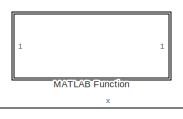
[diagram: root canvas - part 1/3, top center region]
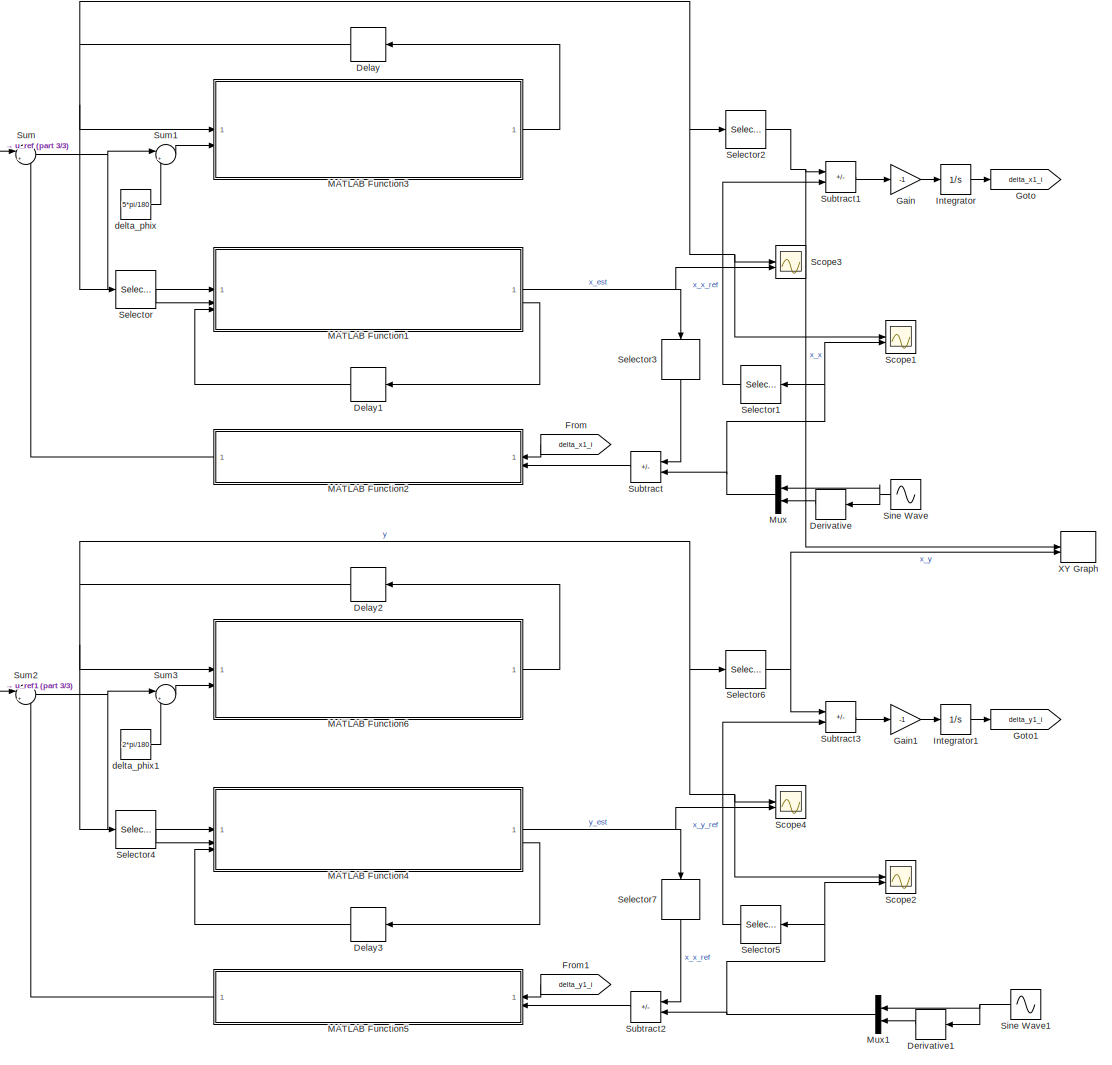
[diagram: root canvas - part 2/3, most of the canvas]
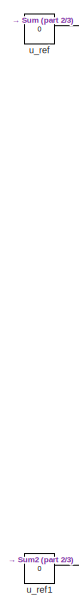
[diagram: root canvas - part 3/3, middle left region]
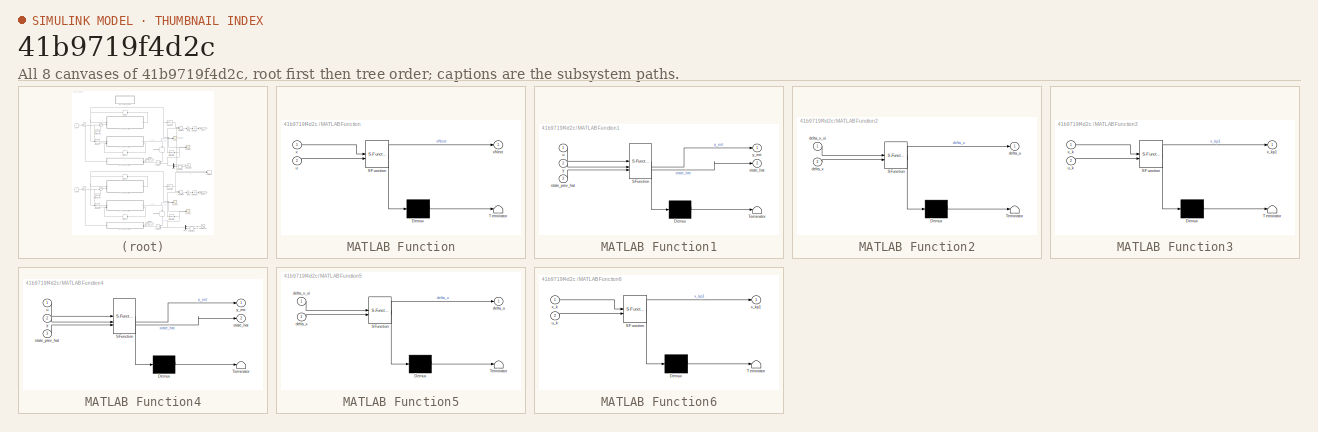
[diagram: thumbnail index - all 8 canvases of the model, root first then tree order]
MODEL slx_41b9719f4d2c
KIND model
CONFIG AbsTol = auto
CONFIG EnableMultiTasking = off
CONFIG FixedStep = 0.001
CONFIG MaxStep = auto
CONFIG MinStep = auto
CONFIG RelTol = 1e-3
CONFIG SampleTimeConstraint = Unconstrained
CONFIG SolverName = ode4
CONFIG StartTime = 0.0
CONFIG StopTime = 50
BLOCK [Delay] Delay
  DelayLength = 1
  InitialCondition = par.ex5_7_iii_x0
  InputPortMap = u0
BLOCK [Delay] Delay1
  DelayLength = 1
  InitialCondition = par.ex5_6_iii_x0_hat
  InputPortMap = u0
  UseCircularBuffer = on
BLOCK [Delay] Delay2
  DelayLength = 1
  InitialCondition = par.ex5_7_iii_x0
  InputPortMap = u0
BLOCK [Delay] Delay3
  DelayLength = 1
  InitialCondition = par.ex5_6_iii_x0_hat
  InputPortMap = u0
  UseCircularBuffer = on
BLOCK [Derivative] Derivative
BLOCK [Derivative] Derivative1
BLOCK [From] From
  GotoTag = delta_x1_i
BLOCK [From] From1
  GotoTag = delta_y1_i
BLOCK [Gain] Gain
  Gain = -1
BLOCK [Gain] Gain1
  Gain = -1
BLOCK [Goto] Goto
  GotoTag = delta_x1_i
BLOCK [Goto] Goto1
  GotoTag = delta_y1_i
BLOCK [Integrator] Integrator
BLOCK [Integrator] Integrator1
BLOCK [SubSystem] MATLAB Function
  Commented = on
  ErrorFcn = Stateflow.Translate.translate
  PermitHierarchicalResolution = ExplicitOnly
  SFBlockType = MATLAB Function
  TreatAsAtomicUnit = on
BLOCK [Demux] MATLAB Function/ Demux 
  Outputs = 1
BLOCK [S-Function] MATLAB Function/ SFunction 
  EnableBusSupport = on
  FunctionName = sf_sfun
  Parameters = par
  PortCounts = [2 2]
  SFcnIsStateOwnerBlock = off
  SFunctionDeploymentMode = off
  Tag = Stateflow S-Function 2
BLOCK [Terminator] MATLAB Function/ Terminator 
BLOCK [Inport] MATLAB Function/u
  Port = 2
BLOCK [Inport] MATLAB Function/x
BLOCK [Outport] MATLAB Function/xNext
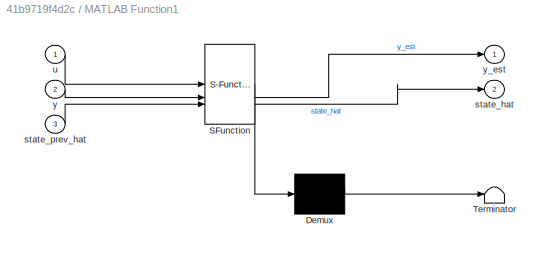
BLOCK [SubSystem] MATLAB Function1
  ErrorFcn = Stateflow.Translate.translate
  PermitHierarchicalResolution = ExplicitOnly
  SFBlockType = MATLAB Function
  TreatAsAtomicUnit = on
BLOCK [Demux] MATLAB Function1/ Demux 
  Outputs = 1
BLOCK [S-Function] MATLAB Function1/ SFunction 
  EnableBusSupport = on
  FunctionName = sf_sfun
  Parameters = par
  PortCounts = [3 3]
  SFcnIsStateOwnerBlock = off
  SFunctionDeploymentMode = off
  Tag = Stateflow S-Function 3
BLOCK [Terminator] MATLAB Function1/ Terminator 
BLOCK [Outport] MATLAB Function1/state_hat
  Port = 2
BLOCK [Inport] MATLAB Function1/state_prev_hat
  Port = 3
BLOCK [Inport] MATLAB Function1/u
BLOCK [Inport] MATLAB Function1/y
  Port = 2
BLOCK [Outport] MATLAB Function1/y_est
BLOCK [SubSystem] MATLAB Function2
  ErrorFcn = Stateflow.Translate.translate
  LibrarySourceBlock = simulink/User-Defined\nFunctions/MATLAB Function
  PermitHierarchicalResolution = ExplicitOnly
  SFBlockType = MATLAB Function
  TreatAsAtomicUnit = on
BLOCK [Demux] MATLAB Function2/ Demux 
  Outputs = 1
BLOCK [S-Function] MATLAB Function2/ SFunction 
  EnableBusSupport = on
  FunctionName = sf_sfun
  Parameters = par
  PortCounts = [2 2]
  SFcnIsStateOwnerBlock = off
  SFunctionDeploymentMode = off
  Tag = Stateflow S-Function 1
BLOCK [Terminator] MATLAB Function2/ Terminator 
BLOCK [Outport] MATLAB Function2/delta_u
BLOCK [Inport] MATLAB Function2/delta_x
  Port = 2
BLOCK [Inport] MATLAB Function2/delta_x_xi
BLOCK [SubSystem] MATLAB Function3
  ErrorFcn = Stateflow.Translate.translate
  PermitHierarchicalResolution = ExplicitOnly
  SFBlockType = MATLAB Function
  TreatAsAtomicUnit = on
BLOCK [Demux] MATLAB Function3/ Demux 
  Outputs = 1
BLOCK [S-Function] MATLAB Function3/ SFunction 
  EnableBusSupport = on
  FunctionName = sf_sfun
  Parameters = par
  PortCounts = [2 2]
  SFcnIsStateOwnerBlock = off
  SFunctionDeploymentMode = off
  Tag = Stateflow S-Function 4
BLOCK [Terminator] MATLAB Function3/ Terminator 
BLOCK [Inport] MATLAB Function3/u_k
  Port = 2
BLOCK [Inport] MATLAB Function3/x_k
BLOCK [Outport] MATLAB Function3/x_kp1
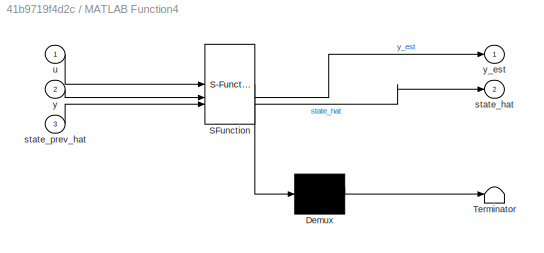
BLOCK [SubSystem] MATLAB Function4
  ErrorFcn = Stateflow.Translate.translate
  PermitHierarchicalResolution = ExplicitOnly
  SFBlockType = MATLAB Function
  TreatAsAtomicUnit = on
BLOCK [Demux] MATLAB Function4/ Demux 
  Outputs = 1
BLOCK [S-Function] MATLAB Function4/ SFunction 
  EnableBusSupport = on
  FunctionName = sf_sfun
  Parameters = par
  PortCounts = [3 3]
  SFcnIsStateOwnerBlock = off
  SFunctionDeploymentMode = off
  Tag = Stateflow S-Function 5
BLOCK [Terminator] MATLAB Function4/ Terminator 
BLOCK [Outport] MATLAB Function4/state_hat
  Port = 2
BLOCK [Inport] MATLAB Function4/state_prev_hat
  Port = 3
BLOCK [Inport] MATLAB Function4/u
BLOCK [Inport] MATLAB Function4/y
  Port = 2
BLOCK [Outport] MATLAB Function4/y_est
BLOCK [SubSystem] MATLAB Function5
  ErrorFcn = Stateflow.Translate.translate
  LibrarySourceBlock = simulink/User-Defined\nFunctions/MATLAB Function
  PermitHierarchicalResolution = ExplicitOnly
  SFBlockType = MATLAB Function
  TreatAsAtomicUnit = on
BLOCK [Demux] MATLAB Function5/ Demux 
  Outputs = 1
BLOCK [S-Function] MATLAB Function5/ SFunction 
  EnableBusSupport = on
  FunctionName = sf_sfun
  Parameters = par
  PortCounts = [2 2]
  SFcnIsStateOwnerBlock = off
  SFunctionDeploymentMode = off
  Tag = Stateflow S-Function 6
BLOCK [Terminator] MATLAB Function5/ Terminator 
BLOCK [Outport] MATLAB Function5/delta_u
BLOCK [Inport] MATLAB Function5/delta_x
  Port = 2
BLOCK [Inport] MATLAB Function5/delta_x_xi
BLOCK [SubSystem] MATLAB Function6
  ErrorFcn = Stateflow.Translate.translate
  PermitHierarchicalResolution = ExplicitOnly
  SFBlockType = MATLAB Function
  TreatAsAtomicUnit = on
BLOCK [Demux] MATLAB Function6/ Demux 
  Outputs = 1
BLOCK [S-Function] MATLAB Function6/ SFunction 
  EnableBusSupport = on
  FunctionName = sf_sfun
  Parameters = par
  PortCounts = [2 2]
  SFcnIsStateOwnerBlock = off
  SFunctionDeploymentMode = off
  Tag = Stateflow S-Function 7
BLOCK [Terminator] MATLAB Function6/ Terminator 
BLOCK [Inport] MATLAB Function6/u_k
  Port = 2
BLOCK [Inport] MATLAB Function6/x_k
BLOCK [Outport] MATLAB Function6/x_kp1
BLOCK [Mux] Mux
  DisplayOption = bar
  Inputs = 2
BLOCK [Mux] Mux1
  DisplayOption = bar
  Inputs = 2
BLOCK [Scope] Scope1
  Floating = off
  NumInputPorts = 2
  ScopeSpecificationString = Simulink.scopes.TimeScopeBlockCfg('CurrentConfiguration', extmgr.ConfigurationSet(extmgr.Configuration('Core','General UI',true),extmgr.Configuration('Core','Source UI',true),extmgr.Configuration('Sources','WiredSimulink',true,'DataLoggingVariableName','ScopeData1'),extmgr.Configuration('Visuals','Time Domain',true,'SerializedDisplays',{struct('MinYLimReal','-1.25703','MaxYLimReal','1.26757','YLab...<+1553ch>
BLOCK [Scope] Scope2
  Floating = off
  NumInputPorts = 2
  ScopeSpecificationString = Simulink.scopes.TimeScopeBlockCfg('CurrentConfiguration', extmgr.ConfigurationSet(extmgr.Configuration('Core','General UI',true),extmgr.Configuration('Core','Source UI',true),extmgr.Configuration('Sources','WiredSimulink',true,'DataLoggingVariableName','ScopeData2'),extmgr.Configuration('Visuals','Time Domain',true,'SerializedDisplays',{struct('MinYLimReal','-1.32582','MaxYLimReal','1.32576','YLab...<+1555ch>
BLOCK [Scope] Scope3
  Floating = off
  NumInputPorts = 2
  ScopeSpecificationString = Simulink.scopes.TimeScopeBlockCfg('CurrentConfiguration', extmgr.ConfigurationSet(extmgr.Configuration('Core','General UI',true),extmgr.Configuration('Core','Source UI',true),extmgr.Configuration('Sources','WiredSimulink',true,'DataLoggingVariableName','ScopeData3'),extmgr.Configuration('Visuals','Time Domain',true,'SerializedDisplays',{struct('MinYLimReal','-1.28134','MaxYLimReal','1.28665','YLab...<+1558ch>
BLOCK [Scope] Scope4
  Floating = off
  NumInputPorts = 2
  ScopeSpecificationString = Simulink.scopes.TimeScopeBlockCfg('CurrentConfiguration', extmgr.ConfigurationSet(extmgr.Configuration('Core','General UI',true),extmgr.Configuration('Core','Source UI',true),extmgr.Configuration('Sources','WiredSimulink',true,'DataLoggingVariableName','ScopeData3'),extmgr.Configuration('Visuals','Time Domain',true,'SerializedDisplays',{struct('MinYLimReal','-0.60056','MaxYLimReal','1.62889','YLab...<+1558ch>
BLOCK [Selector] Selector
  IndexOptions = Index vector (dialog)
  Indices = [1]
  InputPortWidth = 2
  OutputSizes = 1
BLOCK [Selector] Selector1
  IndexOptions = Index vector (dialog)
  Indices = [1]
  InputPortWidth = 2
  OutputSizes = 1
BLOCK [Selector] Selector2
  IndexOptions = Index vector (dialog)
  Indices = [1]
  InputPortWidth = 2
  OutputSizes = 1
BLOCK [Selector] Selector3
  IndexOptions = Index vector (dialog)
  Indices = [1 2]
  InputPortWidth = 3
  NameLocation = right
  OutputSizes = 1
BLOCK [Selector] Selector4
  IndexOptions = Index vector (dialog)
  Indices = [1]
  InputPortWidth = 2
  OutputSizes = 1
BLOCK [Selector] Selector5
  IndexOptions = Index vector (dialog)
  Indices = [1]
  InputPortWidth = 2
  OutputSizes = 1
BLOCK [Selector] Selector6
  IndexOptions = Index vector (dialog)
  Indices = [1]
  InputPortWidth = 2
  OutputSizes = 1
BLOCK [Selector] Selector7
  IndexOptions = Index vector (dialog)
  Indices = [1 2]
  InputPortWidth = 3
  NameLocation = right
  OutputSizes = 1
BLOCK [Sin] Sine Wave
  Amplitude = par.A_x
  Frequency = par.f_x
  Phase = par.P_x
  SampleTime = 0
BLOCK [Sin] Sine Wave1
  Amplitude = par.A_y
  Frequency = par.f_y
  Phase = par.P_y
  SampleTime = 0
BLOCK [Sum] Subtract
  IconShape = rectangular
  Inputs = -+
  NameLocation = top
BLOCK [Sum] Subtract1
  IconShape = rectangular
  Inputs = +-
BLOCK [Sum] Subtract2
  IconShape = rectangular
  Inputs = -+
  NameLocation = top
BLOCK [Sum] Subtract3
  IconShape = rectangular
  Inputs = +-
BLOCK [Sum] Sum
  Inputs = |++
BLOCK [Sum] Sum1
  Inputs = |++
BLOCK [Sum] Sum2
  Inputs = |++
BLOCK [Sum] Sum3
  Inputs = |++
BLOCK [Record] XY Graph
  CompatibilityTag = XY
  FileSettingsInternal = {"entries":[{"content":{"excelSettings":{"content":{},"type":"Streamout.ExcelSettings"}},"type":"Streamout.FileSettingStorage","uuid":"a4bbb464-e277-446f-938f-6bfab3576abf"}],"packageUris":["http://schema.mathworks.com/mf0/streamout_blocks/R2020a"],"version":"1.0"}
  Layout = [1 1]
  SignalsInternal = {"entries":[{"content":{"signals":[{"content":{"blockPath":["Ex5_3_iii_iv/XY Graph"],"channel":[],"dimensions":[1],"domain":"Ex5_3_iii_iv/XY Graph","lineColor":"#fe330a","plots":[1],"port":1,"sid":[""],"signalID":734,"signalName":"x_x"},"type":"RecordBlkView.Signal","uuid":"eadc8627-04eb-4cba-99ca-edfee08eab61"},{"content":{"blockPath":["Ex5_3_iii_iv/XY Graph"],"channel":[],"dimensions":[1],"domai...<+369ch>
  VisualizationBindings = {"xyplotplugin":{"info":[{"series":[{"bindingParametersList":[{"parameter":"Y-Axis","signalID":738,"signalName":"x_y"},{"parameter":"X-Axis","signalID":734,"signalName":"x_x"}],"seriesID":877}],"subplotID":1}]}}
BLOCK [Constant] delta_phix
  Value = 5*pi/180
BLOCK [Constant] delta_phix1
  Value = 2*pi/180
BLOCK [Constant] u_ref
  Value = 0
BLOCK [Constant] u_ref1
  Value = 0
LINE Delay1:1 -> MATLAB Function1:3
NET Delay2:1 -> MATLAB Function6:1, Scope2:1, Scope4:1, Selector4:1, Selector6:1
LINE Delay3:1 -> MATLAB Function4:3
NET Delay:1 -> MATLAB Function3:1, Scope1:1, Scope3:1, Selector2:1, Selector:1
LINE Derivative1:1 -> Mux1:2
LINE Derivative:1 -> Mux:2
LINE From1:1 -> MATLAB Function5:1
LINE From:1 -> MATLAB Function2:1
LINE Gain1:1 -> Integrator1:1
LINE Gain:1 -> Integrator:1
LINE Integrator1:1 -> Goto1:1
LINE Integrator:1 -> Goto:1
NET MATLAB Function1:1 -> Scope3:2, Selector3:1
LINE MATLAB Function1:2 -> Delay1:1
LINE MATLAB Function2:1 -> Sum:2
LINE MATLAB Function3:1 -> Delay:1
NET MATLAB Function4:1 -> Scope4:2, Selector7:1
LINE MATLAB Function4:2 -> Delay3:1
LINE MATLAB Function5:1 -> Sum2:2
LINE MATLAB Function6:1 -> Delay2:1
NET Mux1:1 -> Scope2:2, Selector5:1, Subtract2:2
NET Mux:1 -> Scope1:2, Selector1:1, Subtract:2
LINE Selector1:1 -> Subtract1:2
NET Selector2:1 -> Subtract1:1, XY Graph:1
LINE Selector3:1 -> Subtract:1
LINE Selector4:1 -> MATLAB Function4:2
LINE Selector5:1 -> Subtract3:2
NET Selector6:1 -> Subtract3:1, XY Graph:2
LINE Selector7:1 -> Subtract2:1
LINE Selector:1 -> MATLAB Function1:2
NET Sine Wave1:1 -> Derivative1:1, Mux1:1
NET Sine Wave:1 -> Derivative:1, Mux:1
LINE Subtract1:1 -> Gain:1
LINE Subtract2:1 -> MATLAB Function5:2
LINE Subtract3:1 -> Gain1:1
LINE Subtract:1 -> MATLAB Function2:2
LINE Sum1:1 -> MATLAB Function3:2
NET Sum2:1 -> MATLAB Function4:1, Sum3:1
LINE Sum3:1 -> MATLAB Function6:2
NET Sum:1 -> MATLAB Function1:1, Sum1:1
LINE delta_phix1:1 -> Sum3:2
LINE delta_phix:1 -> Sum1:2
LINE u_ref1:1 -> Sum2:1
LINE u_ref:1 -> Sum:1
note: NET lines group one-source signal fan-out (src -> all destinations, sorted); 1:1 wires keep LINE
CHART MATLAB Function2 states=1 transitions=1
  STATE_LABEL 'eML_blk_kernel()'
  STATE_LABEL 'SCRIPT:\nfunction delta_u = feedback_controller(delta_x_xi,delta_x,par)\n\nk = par.ex5_3_iv_k;\nki = 0;\ndelta_u = k*delta_x + ki*delta_x_xi;\n\nend\n'
CHART MATLAB Function states=1 transitions=1
  STATE_LABEL 'eML_blk_kernel()'
  STATE_LABEL 'SCRIPT:\nfunction xNext = explicitEuler(x,u,par)\n \n    h = par.timeStep;\n    xNext = x + h*reducedModel( x, u, par);\n\nend\n\nfunction dx = reducedModel( x, u, par )\n    \n    % system parameters   \n    g = par.g;\n\n    % States vector\n    x2 = x(2);\n\n    % Preallocate\n    dx = zeros(2,1);\n\n    % reduced model\n    dx(1) = x2;\n    dx(2) = -(5/7)*g*sin(u);\nend\n'
CHART MATLAB Function1 states=1 transitions=1
  STATE_LABEL 'eML_blk_kernel()'
  STATE_LABEL 'SCRIPT:\nfunction [y_est, state_hat] = extKalF(u, y, state_prev_hat, par )\n    \n    R = par.R;          % Measurement covariance matrix\n    Q = par.Q6;          % Process covariance matrix\n    g = par.g;\n\n    ts = par.timeStep;  % discretization timestep for the explicit euler\n\n    c = 0.1;\n    h = @(x) x(1)+c*x(3);    % As we only measure the first state\n    \n    H = [1 0 c];          % Measuremen...<+924ch>'
CHART MATLAB Function3 states=1 transitions=1
  STATE_LABEL 'eML_blk_kernel()'
  STATE_LABEL 'SCRIPT:\nfunction x_kp1 = ball_and_beam_reduced_discrete(x_k, u_k, par)\n%#codegen\nx_kp1 = ball_and_beam_reduced_discrete(x_k, u_k, par);\n'
CHART MATLAB Function4 states=1 transitions=1
  STATE_LABEL 'eML_blk_kernel()'
  STATE_LABEL 'SCRIPT:\nfunction [y_est, state_hat] = extKalF(u, y, state_prev_hat, par )\n    \n    R = par.R;          % Measurement covariance matrix\n    Q = par.Q6;          % Process covariance matrix\n    g = par.g;\n\n    ts = par.timeStep;  % discretization timestep for the explicit euler\n\n    c = 0.1;\n    h = @(x) x(1)+c*x(3);    % As we only measure the first state\n    \n    H = [1 0 c];          % Measuremen...<+924ch>'
CHART MATLAB Function5 states=1 transitions=1
  STATE_LABEL 'eML_blk_kernel()'
  STATE_LABEL 'SCRIPT:\nfunction delta_u = feedback_controller(delta_x_xi,delta_x,par)\n\nk = par.ex5_3_iv_k;\nki = -2;\ndelta_u = k*delta_x + ki*delta_x_xi;\n\nend\n'
CHART MATLAB Function6 states=1 transitions=1
  STATE_LABEL 'eML_blk_kernel()'
  STATE_LABEL 'SCRIPT:\nfunction x_kp1 = ball_and_beam_reduced_discrete(x_k, u_k, par)\n%#codegen\nx_kp1 = ball_and_beam_reduced_discrete(x_k, u_k, par);\n'
CHART  states=0 transitions=0
CHART  states=0 transitions=0
CHART  states=0 transitions=0
CHART  states=0 transitions=0
CHART  states=0 transitions=0
CHART  states=0 transitions=0
CHART  states=0 transitions=0
